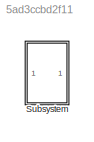
MODEL slx_5ad3ccbd2f11
KIND model
CONFIG AbsTol = auto
CONFIG EnableMultiTasking = off
CONFIG FixedStep = auto
CONFIG MaxStep = auto
CONFIG MinStep = auto
CONFIG RelTol = 1e-3
CONFIG SampleTimeConstraint = Unconstrained
CONFIG Solver = VariableStepAuto
CONFIG SolverName = VariableStepAuto
CONFIG StartTime = 0.0
CONFIG StopTime = 10.0
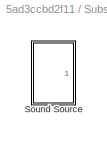
BLOCK [SubSystem] Subsystem
  Ports = []
  RequestExecContextInheritance = off
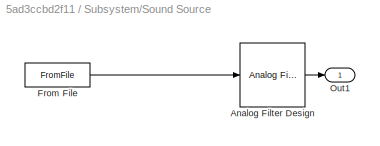
BLOCK [SubSystem] Subsystem/Sound Source
  Ports = [0, 1]
  RequestExecContextInheritance = off
BLOCK [Reference] Subsystem/Sound Source/Analog Filter Design  REF=dsparch4/Analog
Filter Design
  Ports = [1, 1]
  SourceBlock = dsparch4/Analog\nFilter Design
  SourceProductBaseCode = DS
  SourceType = Analog Filter Design
BLOCK [FromFile] Subsystem/Sound Source/From File
  FileName = <userpath>\Downloads\sound.mat
  SampleTime = 0
BLOCK [Outport] Subsystem/Sound Source/Out1
LINE Subsystem/Sound Source/Analog Filter Design:1 -> Subsystem/Sound Source/Out1:1
LINE Subsystem/Sound Source/From File:1 -> Subsystem/Sound Source/Analog Filter Design:1
